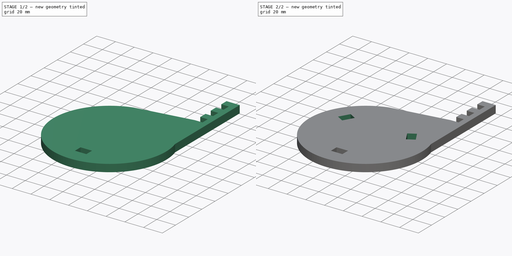
[diagram: build sequence overview — one tinted view per stage of 2, left to right]
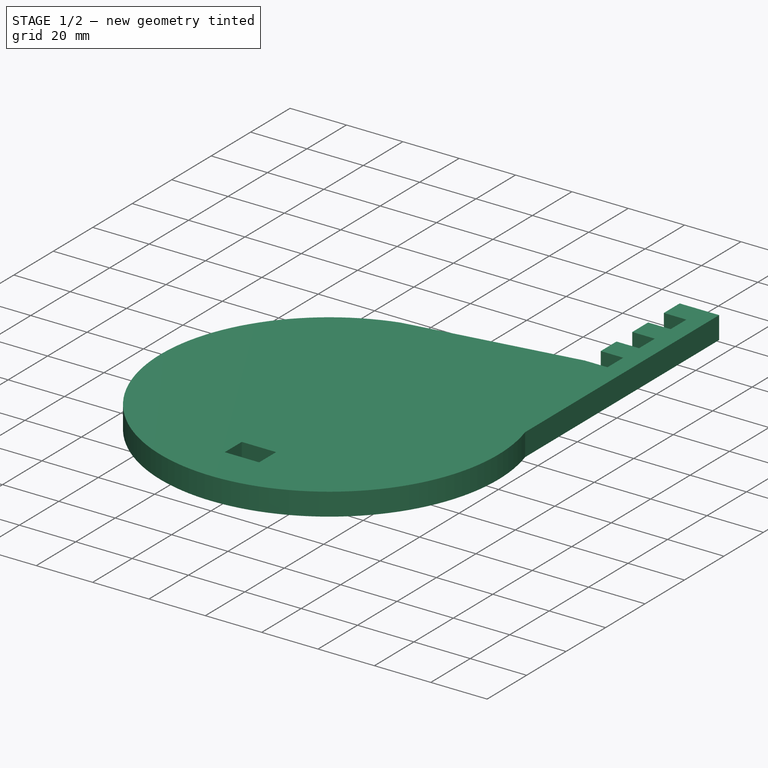
[diagram: stage 1 of 2 — iso view after this stage's code; geometry added in this stage tinted green]
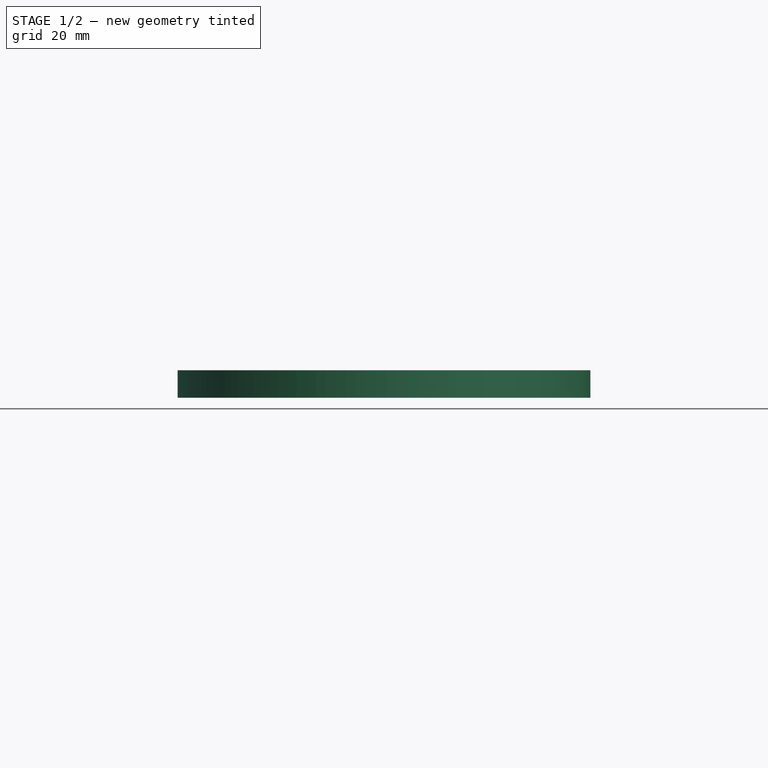
[diagram: stage 1 of 2 — front view after this stage's code; geometry added in this stage tinted green]
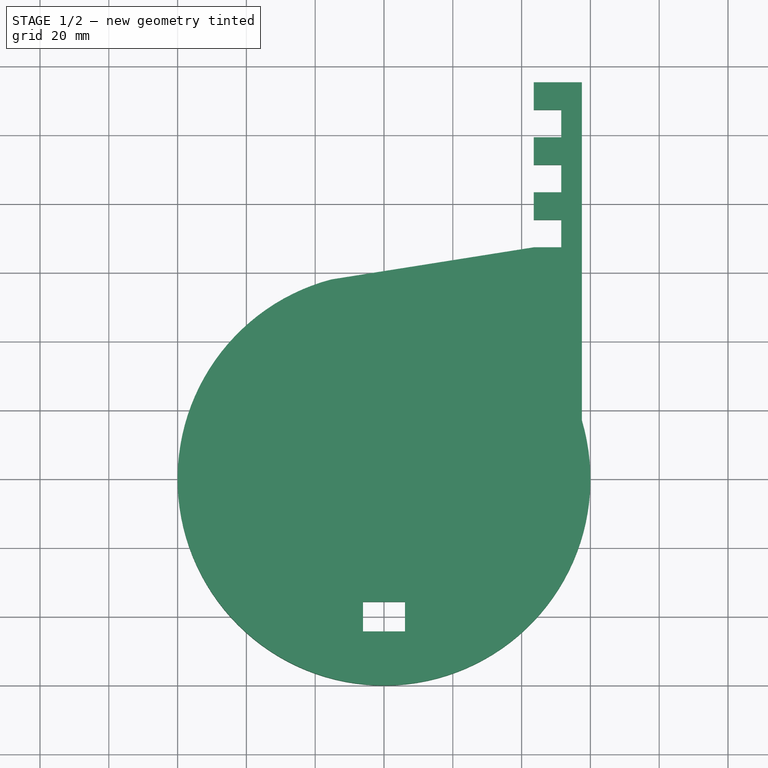
[diagram: stage 1 of 2 — top view after this stage's code; geometry added in this stage tinted green]
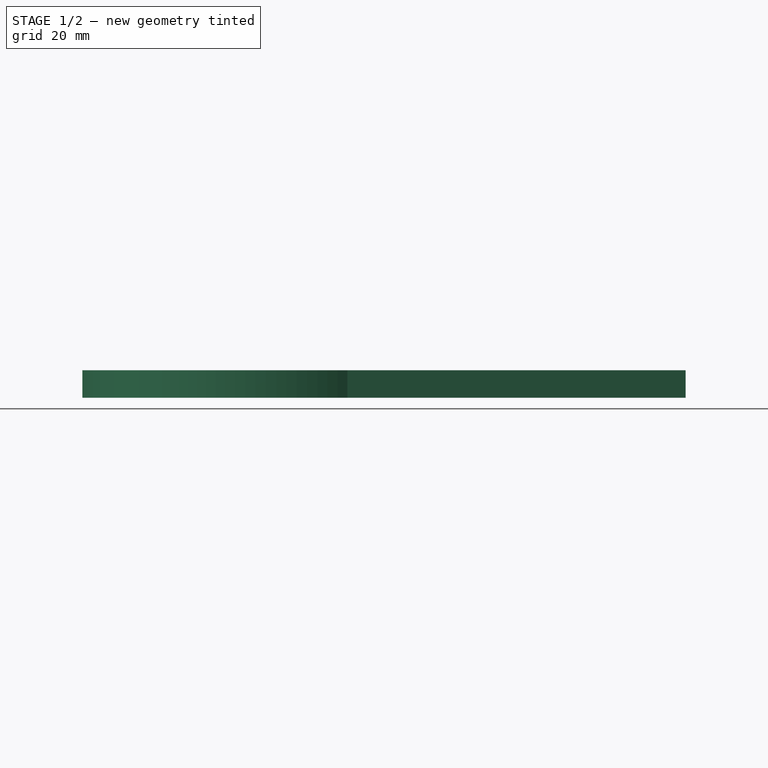
[diagram: stage 1 of 2 — right view after this stage's code; geometry added in this stage tinted green]
FCSTD DOCUMENT  (FreeCAD 0.14R3702 (Git))
Label: soporte_laser_tube_bot
License: CC-BY 3.0
LicenseURL: http://creativecommons.org/licenses/by/3.0/
objects: Sketcher::SketchObject×2, PartDesign::Pad×1, PartDesign::Pocket×1, PartDesign::PolarPattern×1, Part::Part2DObjectPython×1
note: 8 computed .brp shape members not serialized (recipe doc carries the construction recipe); baked Part::Feature solids carry a one-line shape summary decoded from their .brp

FEATURE [Sketcher::SketchObject] Sketch
  sketch-geometry (22):
    g0: LineSegment StartX=51.5303 StartY=115.351 StartZ=0 EndX=57.5303 EndY=115.351 EndZ=0
    g1: LineSegment StartX=57.5303 StartY=115.351 StartZ=0 EndX=57.5303 EndY=17.0372 EndZ=0
    g2: LineSegment [constr] StartX=-12 StartY=-30 StartZ=0 EndX=12 EndY=-30 EndZ=0
    g3: LineSegment [constr] StartX=12 StartY=-30 StartZ=0 EndX=12 EndY=-38 EndZ=0
    g4: LineSegment [constr] StartX=12 StartY=-38 StartZ=0 EndX=-12 EndY=-38 EndZ=0
    g5: LineSegment [constr] StartX=-12 StartY=-38 StartZ=0 EndX=-12 EndY=-30 EndZ=0
    g6: GeomPoint [constr] X=0 Y=0 Z=0
    g7: ArcOfCircle CenterX=0 CenterY=0 CenterZ=0 NormalX=0 NormalY=0 NormalZ=1 Radius=60 StartAngle=1.82972 EndAngle=6.5711
    g8: LineSegment StartX=51.5303 StartY=115.351 StartZ=0 EndX=43.5303 EndY=115.351 EndZ=0
    g9: LineSegment StartX=43.5303 StartY=115.351 StartZ=0 EndX=43.5303 EndY=107.351 EndZ=0
    g10: LineSegment StartX=43.5303 StartY=107.351 StartZ=0 EndX=51.5303 EndY=107.351 EndZ=0
    g11: LineSegment StartX=51.5303 StartY=107.351 StartZ=0 EndX=51.5303 EndY=99.3511 EndZ=0
    g12: LineSegment StartX=51.5303 StartY=99.3511 StartZ=0 EndX=43.5303 EndY=99.3511 EndZ=0
    g13: LineSegment StartX=43.5303 StartY=99.3511 StartZ=0 EndX=43.5303 EndY=91.3511 EndZ=0
    g14: LineSegment StartX=43.5303 StartY=91.3511 StartZ=0 EndX=51.5303 EndY=91.3511 EndZ=0
    g15: LineSegment StartX=51.5303 StartY=91.3511 StartZ=0 EndX=51.5303 EndY=83.3511 EndZ=0
    g16: LineSegment StartX=51.5303 StartY=83.3511 StartZ=0 EndX=43.5303 EndY=83.3511 EndZ=0
    g17: LineSegment StartX=43.5303 StartY=83.3511 StartZ=0 EndX=43.5303 EndY=75.3511 EndZ=0
    g18: LineSegment StartX=43.5303 StartY=75.3511 StartZ=0 EndX=51.5303 EndY=75.3511 EndZ=0
    g19: LineSegment StartX=51.5303 StartY=75.3511 StartZ=0 EndX=51.5303 EndY=67.3511 EndZ=0
    g20: LineSegment StartX=51.5303 StartY=67.3511 StartZ=0 EndX=43.5303 EndY=67.3511 EndZ=0
    g21: LineSegment StartX=43.5303 StartY=67.3511 StartZ=0 EndX=-15.3623 EndY=58 EndZ=0
  constraints (64):
    c: Horizontal(g0)
    c: Distance(g0) = 6
    c: Coincident(g1,g0)
    c: Vertical(g1)
    c: Coincident(g2,g3)
    c: Coincident(g3,g4)
    c: Coincident(g4,g5)
    c: Coincident(g5,g2)
    c: Horizontal(g2)
    c: Horizontal(g4)
    c: Vertical(g3)
    c: Vertical(g5)
    c: Distance(g5) = 8
    c: Distance(g2) = 24
    c: DistanceX(g-1,g4) = -12
    c: DistanceY(g-1,g2) = -30
    c: Coincident(g6,g-1)
    c: DistanceX(g-2,g0) = 57.5303
    c: Coincident(g7,g-1)
    c: Radius(g7) = 60
    c: Coincident(g0,g8)
    c: Horizontal(g8)
    c: Coincident(g8,g9)
    c: Vertical(g9)
    c: Coincident(g9,g10)
    c: Horizontal(g10)
    c: Coincident(g10,g11)
    c: Vertical(g11)
    c: Coincident(g11,g12)
    c: Horizontal(g12)
    c: Coincident(g12,g13)
    c: Vertical(g13)
    c: Coincident(g13,g14)
    c: Horizontal(g14)
    c: Coincident(g14,g15)
    c: Vertical(g15)
    c: Coincident(g15,g16)
    c: Horizontal(g16)
    c: Coincident(g16,g17)
    c: Vertical(g17)
    c: Coincident(g17,g18)
    c: Horizontal(g18)
    c: Coincident(g18,g19)
    c: Vertical(g19)
    c: Coincident(g19,g20)
    c: Horizontal(g20)
    c: Distance(g8) = 8
    c: Equal(g10,g9)
    c: Equal(g9,g8)
    c: Equal(g8,g11)
    c: Equal(g11,g12)
    c: Equal(g12,g13)
    c: Equal(g13,g14)
    c: Equal(g14,g16)
    c: Equal(g16,g15)
    c: Equal(g15,g17)
    c: Equal(g17,g18)
    c: Equal(g18,g19)
    c: Equal(g19,g20)
    c: Coincident(g21,g20)
    c: Coincident(g7,g21)
    c: Coincident(g7,g1)
    c: Coincident(g21,g7)
    c: DistanceY(g-1,g7) = 58
FEATURE [PartDesign::Pad] Pad
  Length = 8
  Length2 = 100
  Sketch = -> Sketch
  Type = 0
FEATURE [Sketcher::SketchObject] Sketch001
  Placement = pos=(0,0,8) rot=(0,0,1;0rad)
  Support = -> Pad [Face19]
  sketch-geometry (6):
    g0: Circle [constr] CenterX=0 CenterY=0 CenterZ=0 NormalX=0 NormalY=0 NormalZ=1 Radius=40
    g1: LineSegment StartX=-6.1 StartY=-35.7 StartZ=0 EndX=6.1 EndY=-35.7 EndZ=0
    g2: LineSegment StartX=6.1 StartY=-35.7 StartZ=0 EndX=6.1 EndY=-44.3 EndZ=0
    g3: LineSegment StartX=6.1 StartY=-44.3 StartZ=0 EndX=-6.1 EndY=-44.3 EndZ=0
    g4: LineSegment StartX=-6.1 StartY=-44.3 StartZ=0 EndX=-6.1 EndY=-35.7 EndZ=0
    g5: GeomPoint [constr] X=0 Y=-40 Z=0
  constraints (16):
    c: Coincident(g0,g-1)
    c: Radius(g0) = 40
    c: Coincident(g1,g2)
    c: Coincident(g2,g3)
    c: Coincident(g3,g4)
    c: Coincident(g4,g1)
    c: Horizontal(g1)
    c: Horizontal(g3)
    c: Vertical(g2)
    c: Vertical(g4)
    c: Distance(g1) = 12.2
    c: Distance(g4) = 8.6
    c: Distance(g5,g1) = 4.3
    c: Distance(g5,g2) = 6.1
    c: PointOnObject(g5,g0)
    c: PointOnObject(g5,g-2)
FEATURE [PartDesign::Pocket] Pocket
  Length = 5
  Sketch = -> Sketch001
  Type = 1
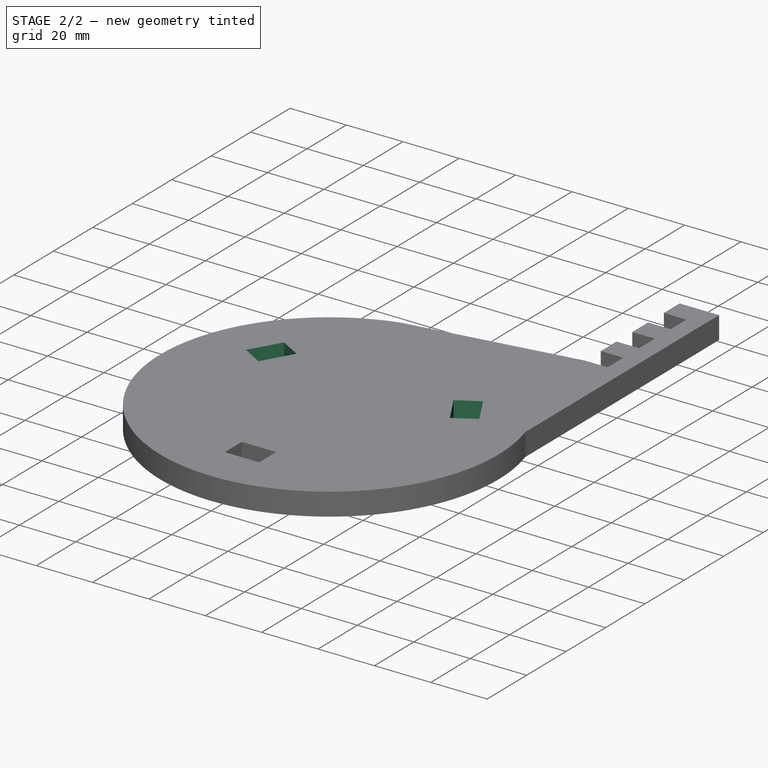
[diagram: stage 2 of 2 — iso view after this stage's code; geometry added in this stage tinted green]
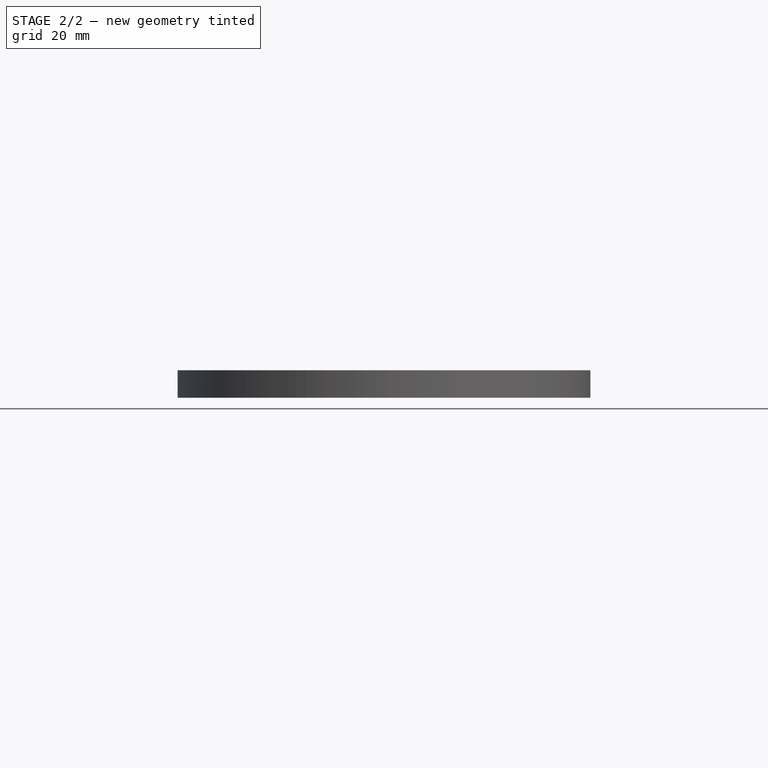
[diagram: stage 2 of 2 — front view after this stage's code; geometry added in this stage tinted green]
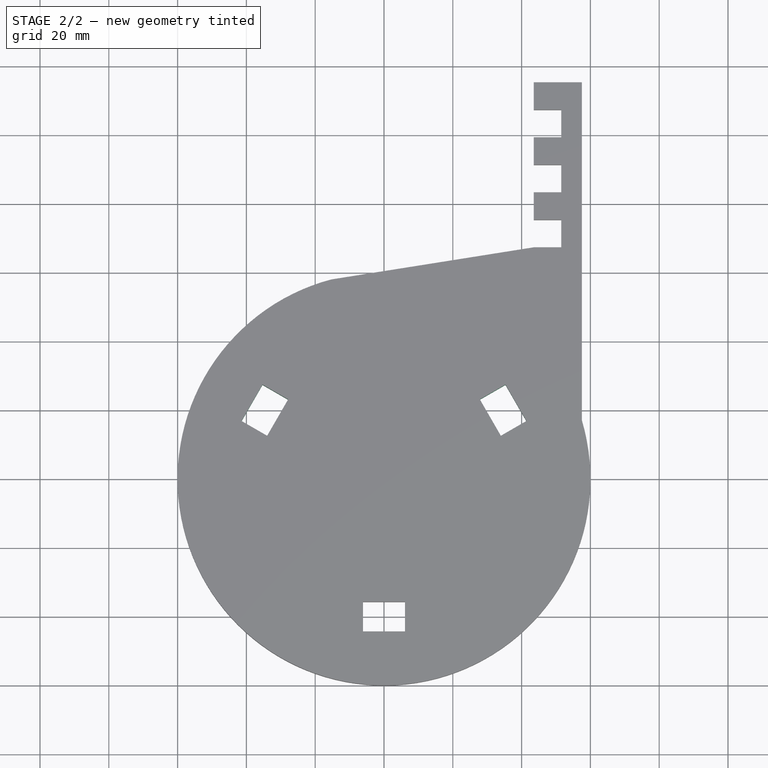
[diagram: stage 2 of 2 — top view after this stage's code; geometry added in this stage tinted green]
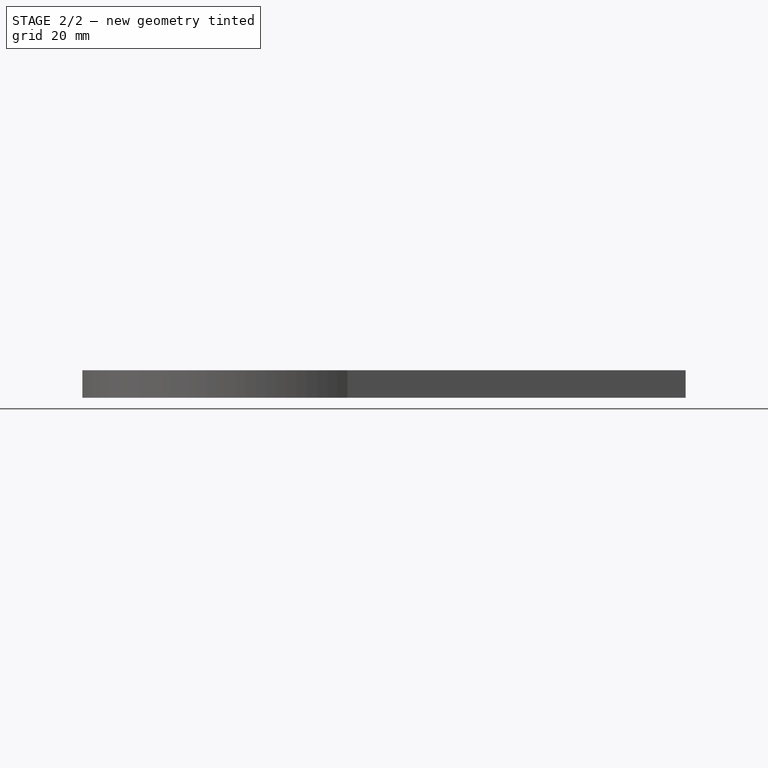
[diagram: stage 2 of 2 — right view after this stage's code; geometry added in this stage tinted green]
FEATURE [PartDesign::PolarPattern] PolarPattern
  Angle = 360
  Axis = -> Sketch001 [N_Axis]
  Occurrences = 3
  Originals = -> [Pocket]
FEATURE [Part::Part2DObjectPython] Shape2DView  # Draft 2D object (typed FeaturePython)
  Base = -> PolarPattern
  FaceNumbers = [3]
  HiddenLines = false
  Projection = (0,0,1)
  ProjectionMode = 0
  SegmentLength = 0.05
  Tessellation = false
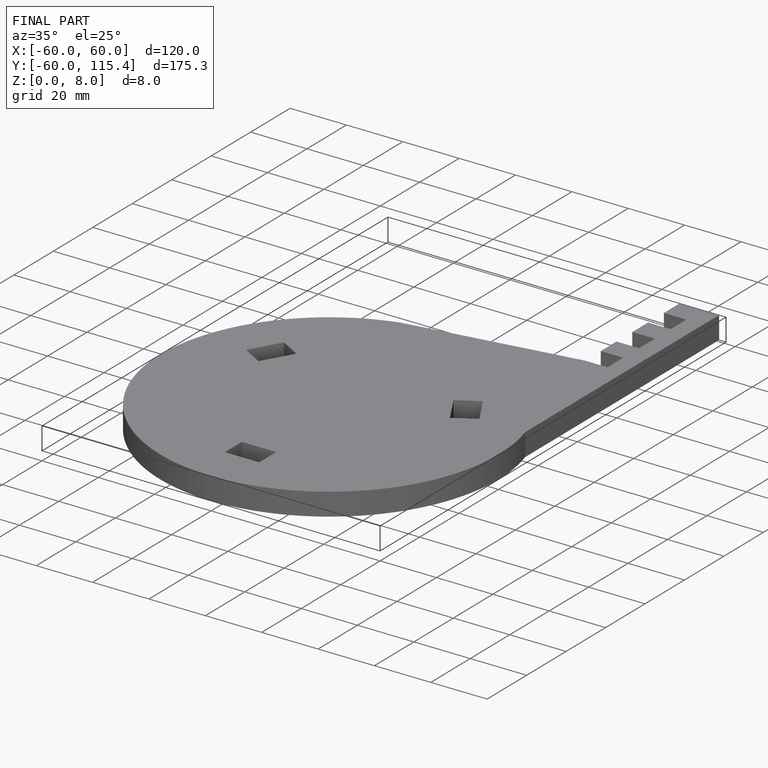
[diagram: finished part — iso view with bounding-box wireframe]
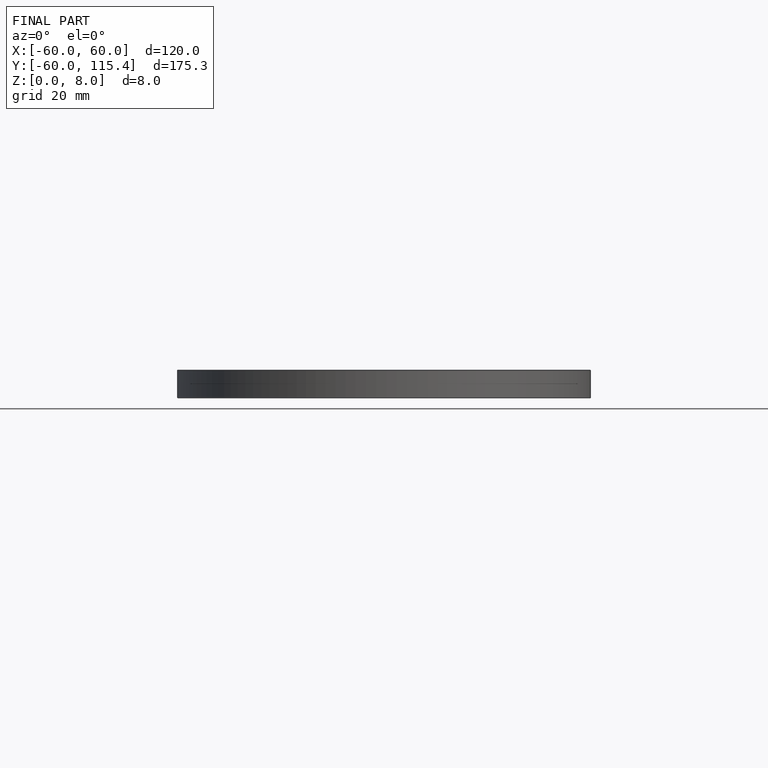
[diagram: finished part — front view with bounding-box wireframe]
